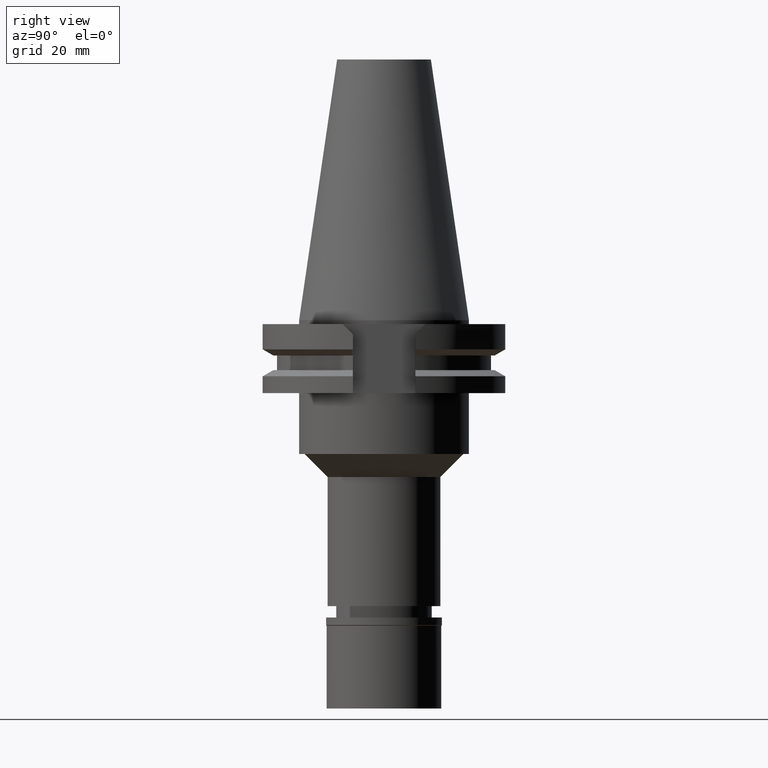
[diagram: clean part render]
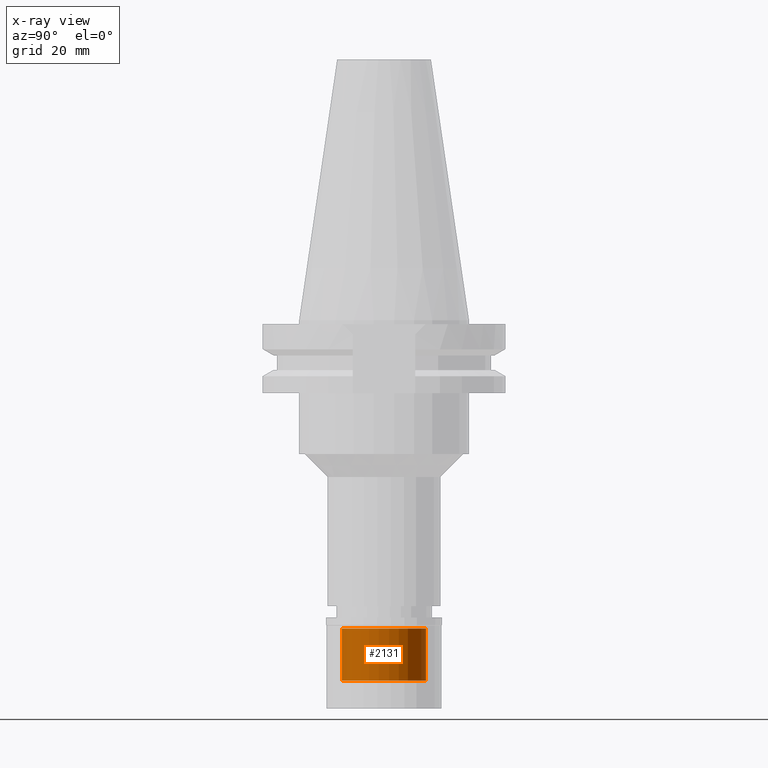
[diagram: x-ray — body ghosted, one internal face saturated and labeled with its STEP entity id]
A machine part, right view, then the same camera in x-ray: the body is ghosted and one INTERNAL B-rep face — a face not visible from any outside direction — is saturated and labeled: STEP entity #2131.
In plain terms, the highlighted cylindrical surface (partial cylindrical patch) has radius 11 mm, axis along (0, 0, -1).
Its self-contained STEP definition (entity closure, byte-faithful):
#37 = DIRECTION ( 'NONE',  ( 0.0000000000000000000, 0.0000000000000000000, 1.000000000000000000 ) ) ;
#122 = VECTOR ( 'NONE', #3038, 1000.000000000000000 ) ;
#137 = AXIS2_PLACEMENT_3D ( 'NONE', #1891, #3106, #1586 ) ;
#179 = ORIENTED_EDGE ( 'NONE', *, *, #696, .T. ) ;
#620 = CYLINDRICAL_SURFACE ( 'NONE', #137, 11.00000000000000000 ) ;
#687 = AXIS2_PLACEMENT_3D ( 'NONE', #2042, #2059, #2549 ) ;
#696 = EDGE_CURVE ( 'NONE', #1194, #2133, #3271, .T. ) ;
#773 = EDGE_CURVE ( 'NONE', #2133, #2564, #2313, .T. ) ;
#794 = CARTESIAN_POINT ( 'NONE',  ( 0.0000000000000000000, 11.00000000000000000, -2.899999999999999911 ) ) ;
#851 = FACE_OUTER_BOUND ( 'NONE', #2618, .T. ) ;
#892 = LINE ( 'NONE', #2945, #1527 ) ;
#1194 = VERTEX_POINT ( 'NONE', #1719 ) ;
#1527 = VECTOR ( 'NONE', #1667, 1000.000000000000000 ) ;
#1586 = DIRECTION ( 'NONE',  ( 0.0000000000000000000, -1.000000000000000000, 0.0000000000000000000 ) ) ;
#1657 = ORIENTED_EDGE ( 'NONE', *, *, #3177, .T. ) ;
#1667 = DIRECTION ( 'NONE',  ( 0.0000000000000000000, 0.0000000000000000000, 1.000000000000000000 ) ) ;
#1719 = CARTESIAN_POINT ( 'NONE',  ( 0.0000000000000000000, -11.00000000000000000, -16.50000000000000000 ) ) ;
#1891 = CARTESIAN_POINT ( 'NONE',  ( 0.0000000000000000000, 0.0000000000000000000, 0.0000000000000000000 ) ) ;
#2010 = CARTESIAN_POINT ( 'NONE',  ( 0.0000000000000000000, -11.00000000000000000, -16.50000000000000000 ) ) ;
#2042 = CARTESIAN_POINT ( 'NONE',  ( 0.0000000000000000000, 0.0000000000000000000, -16.50000000000000000 ) ) ;
#2059 = DIRECTION ( 'NONE',  ( 0.0000000000000000000, 0.0000000000000000000, -1.000000000000000000 ) ) ;
#2098 = ORIENTED_EDGE ( 'NONE', *, *, #2163, .F. ) ;
#2131 = ADVANCED_FACE ( 'NONE', ( #851 ), #620, .F. ) ;
#2133 = VERTEX_POINT ( 'NONE', #2611 ) ;
#2163 = EDGE_CURVE ( 'NONE', #2488, #2564, #892, .T. ) ;
#2296 = CIRCLE ( 'NONE', #687, 11.00000000000000000 ) ;
#2313 = CIRCLE ( 'NONE', #2647, 11.00000000000000000 ) ;
#2426 = CARTESIAN_POINT ( 'NONE',  ( 0.0000000000000000000, 11.00000000000000000, -16.50000000000000000 ) ) ;
#2488 = VERTEX_POINT ( 'NONE', #2426 ) ;
#2549 = DIRECTION ( 'NONE',  ( 0.0000000000000000000, 1.000000000000000000, 0.0000000000000000000 ) ) ;
#2558 = ORIENTED_EDGE ( 'NONE', *, *, #773, .T. ) ;
#2564 = VERTEX_POINT ( 'NONE', #794 ) ;
#2611 = CARTESIAN_POINT ( 'NONE',  ( 0.0000000000000000000, -11.00000000000000000, -2.899999999999999911 ) ) ;
#2618 = EDGE_LOOP ( 'NONE', ( #1657, #179, #2558, #2098 ) ) ;
#2647 = AXIS2_PLACEMENT_3D ( 'NONE', #2817, #37, #3098 ) ;
#2817 = CARTESIAN_POINT ( 'NONE',  ( 0.0000000000000000000, 0.0000000000000000000, -2.899999999999999911 ) ) ;
#2945 = CARTESIAN_POINT ( 'NONE',  ( 0.0000000000000000000, 11.00000000000000000, -16.50000000000000000 ) ) ;
#3038 = DIRECTION ( 'NONE',  ( 0.0000000000000000000, 0.0000000000000000000, 1.000000000000000000 ) ) ;
#3098 = DIRECTION ( 'NONE',  ( 0.0000000000000000000, -1.000000000000000000, 0.0000000000000000000 ) ) ;
#3106 = DIRECTION ( 'NONE',  ( 0.0000000000000000000, 0.0000000000000000000, -1.000000000000000000 ) ) ;
#3177 = EDGE_CURVE ( 'NONE', #2488, #1194, #2296, .T. ) ;
#3271 = LINE ( 'NONE', #2010, #122 ) ;